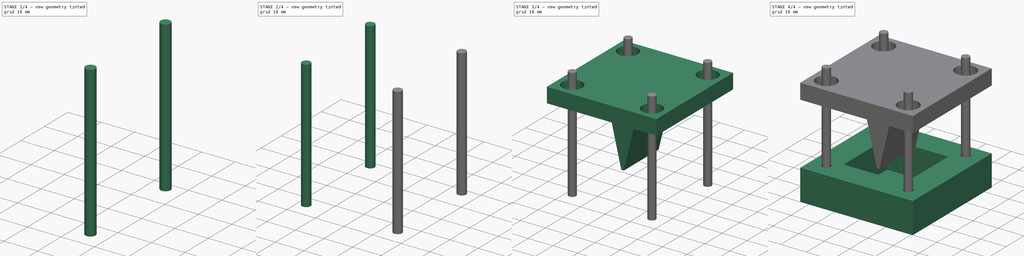
[diagram: build sequence overview — one tinted view per stage of 4, left to right]
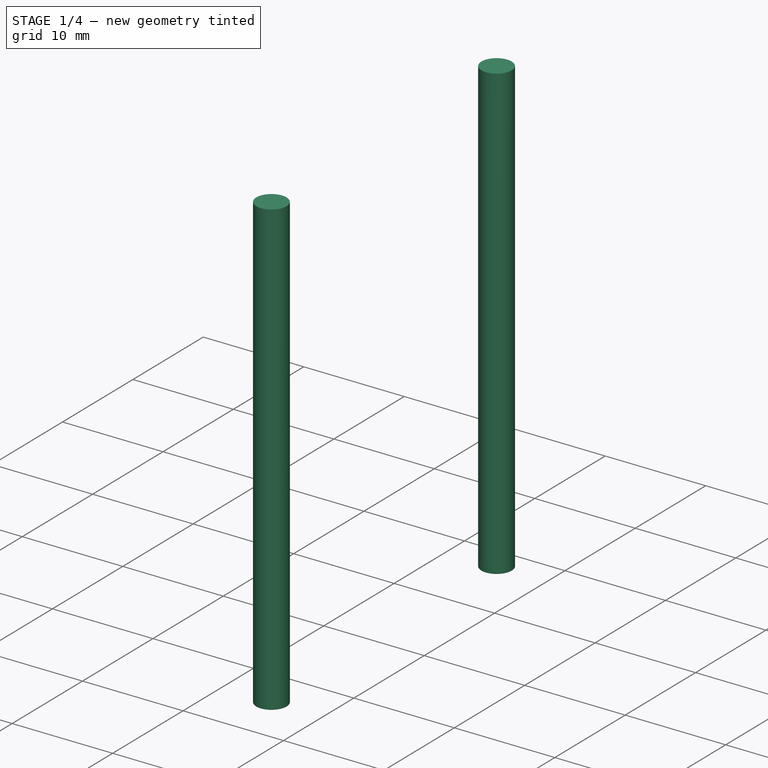
[diagram: stage 1 of 4 — iso view after this stage's code; geometry added in this stage tinted green]
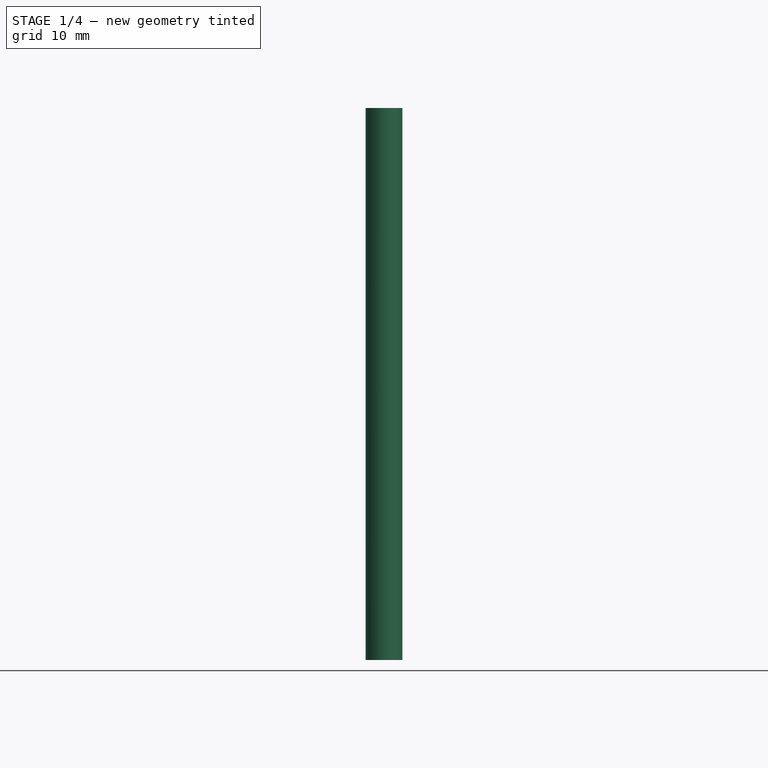
[diagram: stage 1 of 4 — front view after this stage's code; geometry added in this stage tinted green]
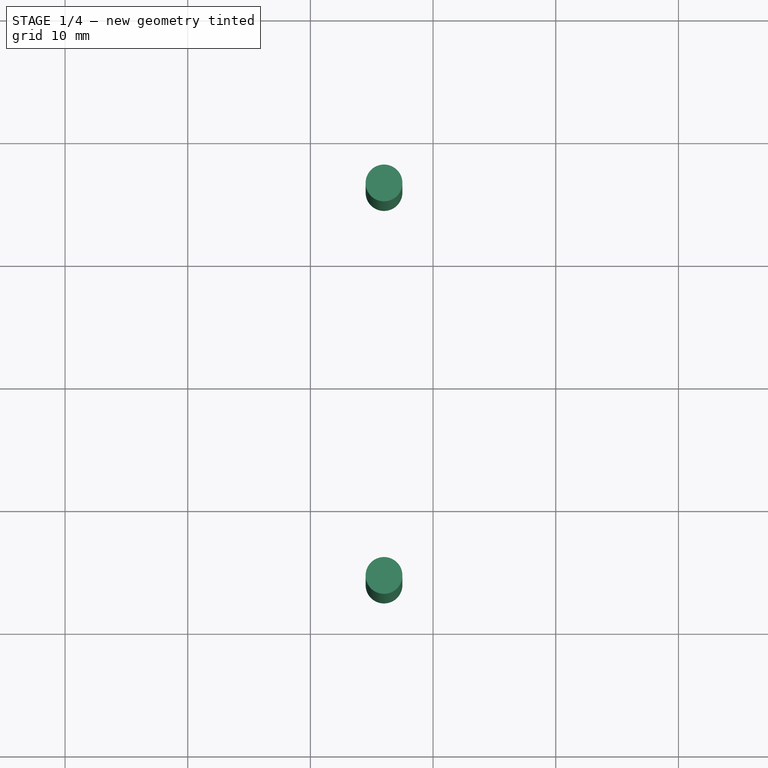
[diagram: stage 1 of 4 — top view after this stage's code; geometry added in this stage tinted green]
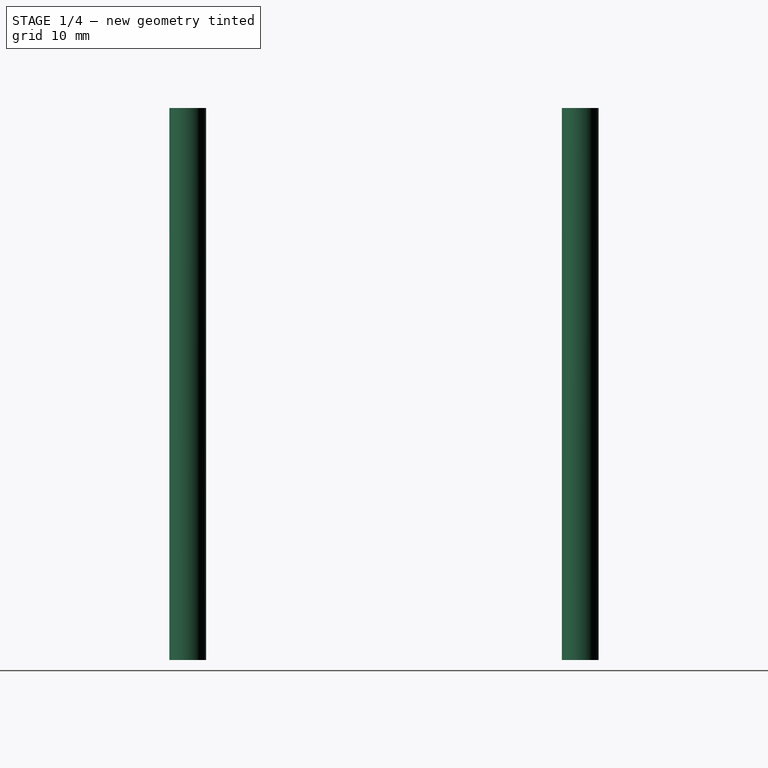
[diagram: stage 1 of 4 — right view after this stage's code; geometry added in this stage tinted green]
FCSTD DOCUMENT  (FreeCAD 0.17R13513 (Git))
Label: sen_b
License: All rights reserved
LicenseURL: http://en.wikipedia.org/wiki/All_rights_reserved
objects: Part::Cylinder×4, Sketcher::SketchObject×3, Part::Box×2, PartDesign::Pocket×2, PartDesign::Pad×1
note: 15 computed .brp shape members not serialized (recipe doc carries the construction recipe); baked Part::Feature solids carry a one-line shape summary decoded from their .brp

FEATURE [Part::Cylinder] Cylinder002
  Angle = 360
  AttacherType = Attacher::AttachEngine3D
  Height = 45
  Placement = pos=(36,36,0) rot=(0,0,1;0rad)
  Radius = 1.5
FEATURE [Part::Cylinder] Cylinder003
  Angle = 360
  AttacherType = Attacher::AttachEngine3D
  Height = 45
  Placement = pos=(36,4,0) rot=(0,0,1;0rad)
  Radius = 1.5
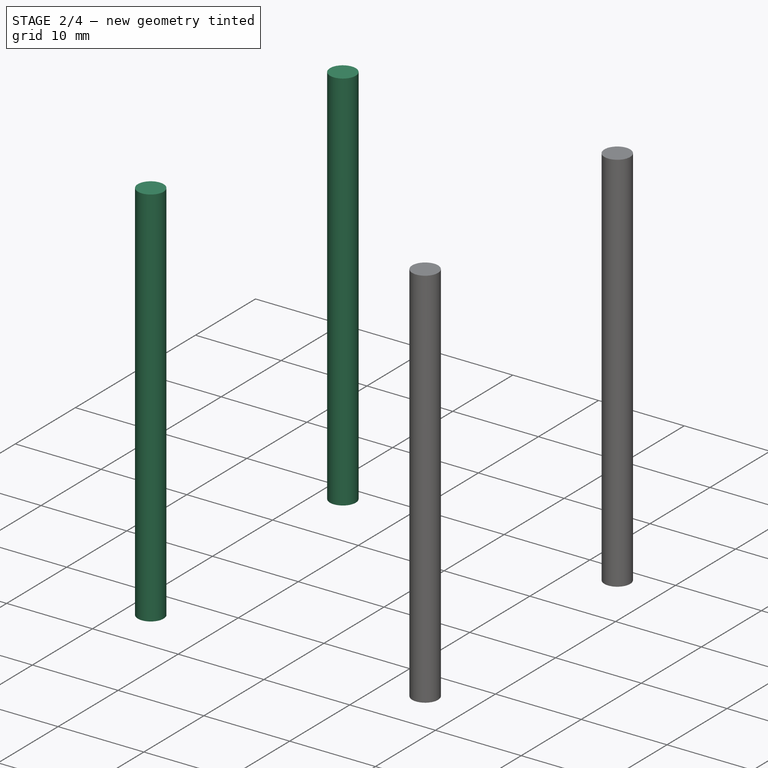
[diagram: stage 2 of 4 — iso view after this stage's code; geometry added in this stage tinted green]
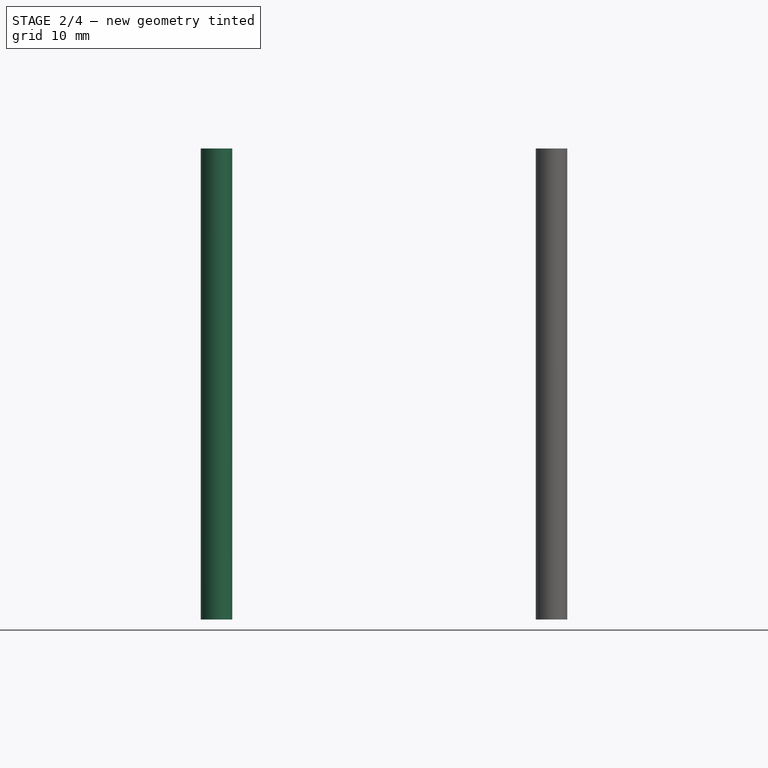
[diagram: stage 2 of 4 — front view after this stage's code; geometry added in this stage tinted green]
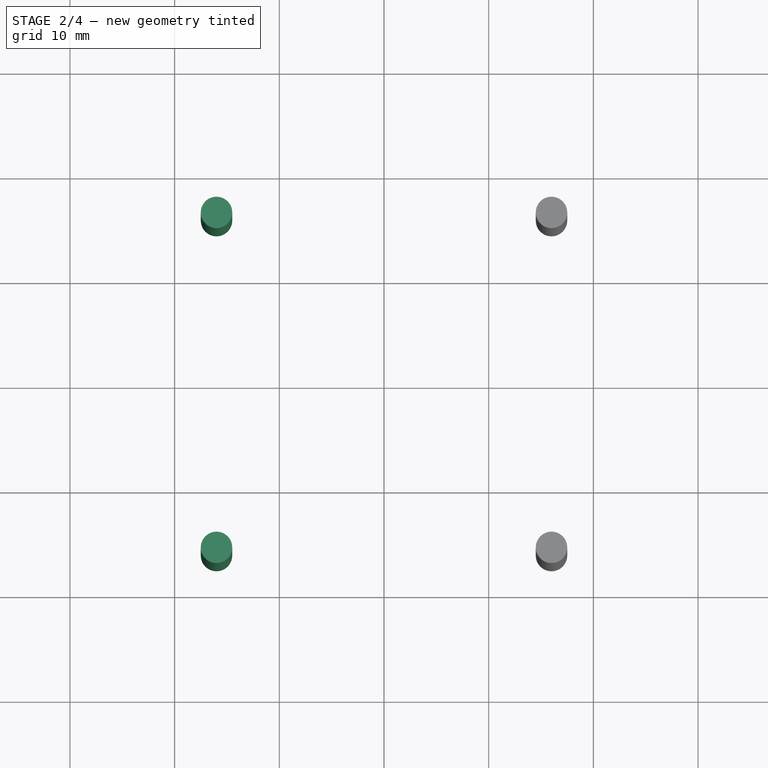
[diagram: stage 2 of 4 — top view after this stage's code; geometry added in this stage tinted green]
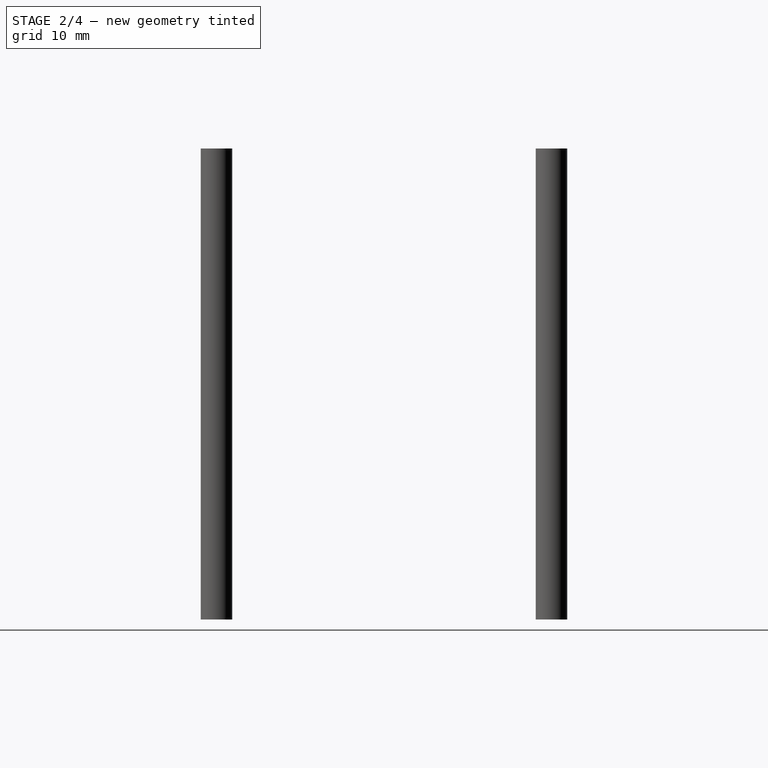
[diagram: stage 2 of 4 — right view after this stage's code; geometry added in this stage tinted green]
FEATURE [Part::Cylinder] Cylinder
  Angle = 360
  AttacherType = Attacher::AttachEngine3D
  Height = 45
  Placement = pos=(4,4,0) rot=(0,0,1;0rad)
  Radius = 1.5
FEATURE [Part::Cylinder] Cylinder001
  Angle = 360
  AttacherType = Attacher::AttachEngine3D
  Height = 45
  Placement = pos=(4,36,0) rot=(0,0,1;0rad)
  Radius = 1.5
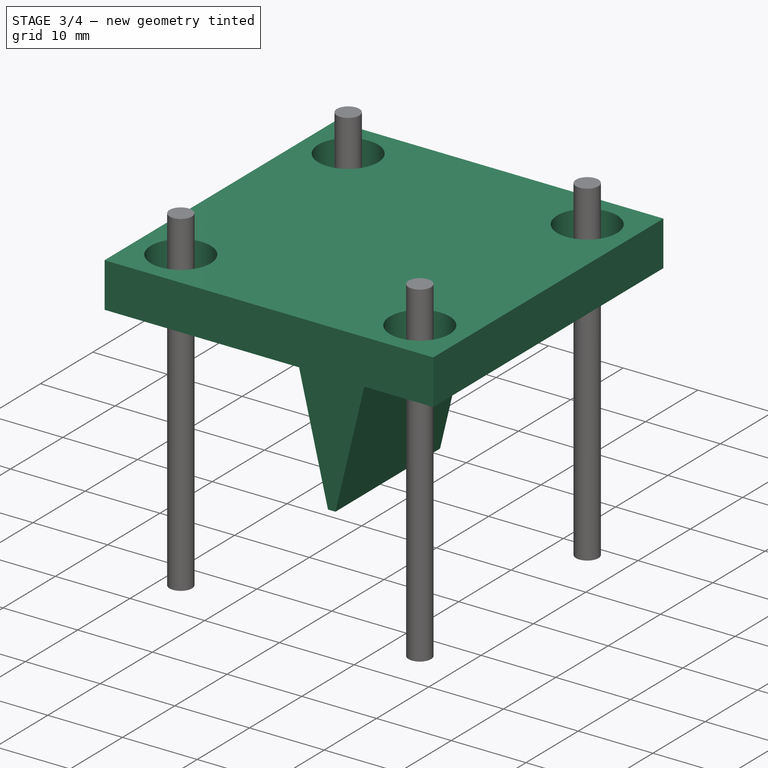
[diagram: stage 3 of 4 — iso view after this stage's code; geometry added in this stage tinted green]
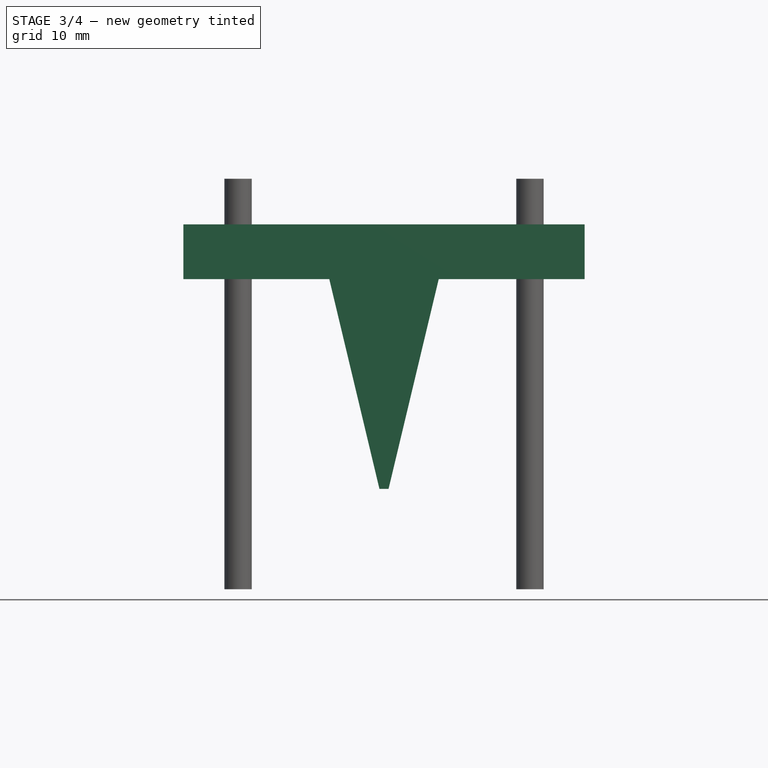
[diagram: stage 3 of 4 — front view after this stage's code; geometry added in this stage tinted green]
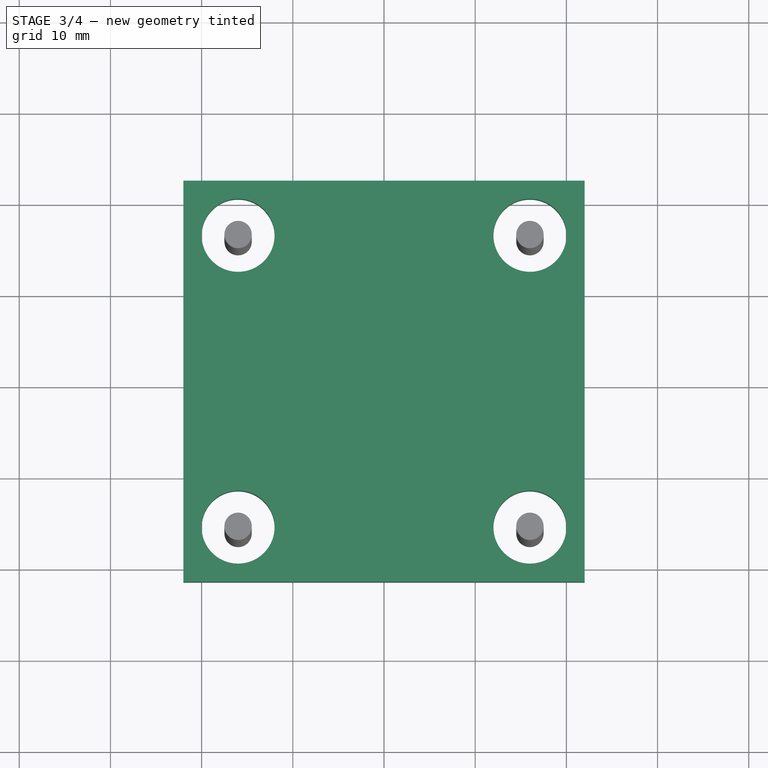
[diagram: stage 3 of 4 — top view after this stage's code; geometry added in this stage tinted green]
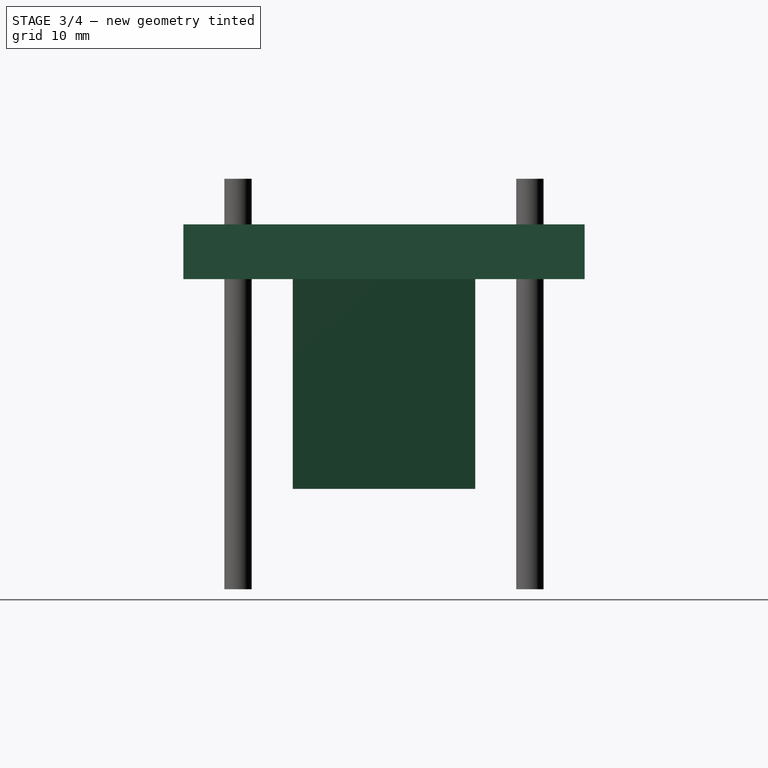
[diagram: stage 3 of 4 — right view after this stage's code; geometry added in this stage tinted green]
FEATURE [Sketcher::SketchObject] Sketch001
  MapMode = 5
  Placement = pos=(0,30,0) rot=(1,0,0;1.5708rad)
  sketch-geometry (8):
    g0: LineSegment StartX=0 StartY=40 StartZ=0 EndX=40 EndY=40 EndZ=0
    g1: LineSegment StartX=40 StartY=40 StartZ=0 EndX=40 EndY=34 EndZ=0
    g2: LineSegment StartX=40 StartY=34 StartZ=0 EndX=26 EndY=34 EndZ=0
    g3: LineSegment StartX=26 StartY=34 StartZ=0 EndX=20.5 EndY=11 EndZ=0
    g4: LineSegment StartX=20.5 StartY=11 StartZ=0 EndX=19.5 EndY=11 EndZ=0
    g5: LineSegment StartX=19.5 StartY=11 StartZ=0 EndX=14 EndY=34 EndZ=0
    g6: LineSegment StartX=14 StartY=34 StartZ=0 EndX=0 EndY=34 EndZ=0
    g7: LineSegment StartX=0 StartY=34 StartZ=0 EndX=0 EndY=40 EndZ=0
  constraints (24):
    c: Coincident(g0,g1)
    c: Coincident(g1,g2)
    c: Coincident(g2,g3)
    c: Coincident(g3,g4)
    c: Coincident(g4,g5)
    c: Coincident(g5,g6)
    c: Coincident(g6,g7)
    c: Coincident(g7,g0)
    c: Horizontal(g6)
    c: DistanceY(g5,g2) = 0
    c: Horizontal(g2)
    c: Horizontal(g0)
    c: Vertical(g1)
    c: Vertical(g7)
    c: Horizontal(g4)
    c: DistanceX(g0,g0) = 40
    c: DistanceX(g6,g5) = 14
    c: DistanceX(g6,g-1) = 0
    c: DistanceX(g2,g1) = 14
    c: DistanceX(g4,g3) = 1
    c: DistanceX(g5,g4) = 5.5
    c: DistanceY(g-1,g3) = 11
    c: DistanceY(g1,g0) = 6
    c: DistanceY(g-1,g0) = 40
FEATURE [PartDesign::Pad] Pad
  Length = 20
  Length2 = 100
  Placement = pos=(0,30,0) rot=(1,0,0;1.5708rad)
  Profile = -> Sketch001
  Type = 0
FEATURE [Part::Box] Box001  label="Cube001"
  AttacherType = Attacher::AttachEngine3D
  Height = 6
  Length = 44
  Placement = pos=(-2,-2,34) rot=(0,0,1;0rad)
  Width = 44
FEATURE [Sketcher::SketchObject] Sketch002
  MapMode = 5
  Placement = pos=(-2,-2,40) rot=(0,0,1;0rad)
  Support = -> [Box001]
  sketch-geometry (4):
    g0: Circle CenterX=6 CenterY=38 CenterZ=0 NormalX=0 NormalY=0 NormalZ=1 AngleXU=0 Radius=4
    g1: Circle CenterX=38 CenterY=38 CenterZ=0 NormalX=0 NormalY=0 NormalZ=1 AngleXU=0 Radius=4
    g2: Circle CenterX=6 CenterY=6 CenterZ=0 NormalX=0 NormalY=0 NormalZ=1 AngleXU=0 Radius=4
    g3: Circle CenterX=38 CenterY=6 CenterZ=0 NormalX=0 NormalY=0 NormalZ=1 AngleXU=0 Radius=4
  constraints (12):
    c: Radius(g2) = 4
    c: DistanceY(g-1,g2) = 6
    c: DistanceX(g-1,g2) = 6
    c: DistanceX(g2,g3) = 32
    c: DistanceY(g3,g1) = 32
    c: DistanceY(g2,g3) = 0
    c: DistanceX(g3,g1) = 0
    c: DistanceX(g0,g1) = 32
    c: DistanceY(g1,g0) = 0
    c: Radius(g3) = 4
    c: Radius(g1) = 4
    c: Radius(g0) = 4
FEATURE [PartDesign::Pocket] Pocket001
  Length = 7
  Length2 = 100
  Placement = pos=(-2,-2,34) rot=(0,0,1;0rad)
  Profile = -> Sketch002
  Type = 0
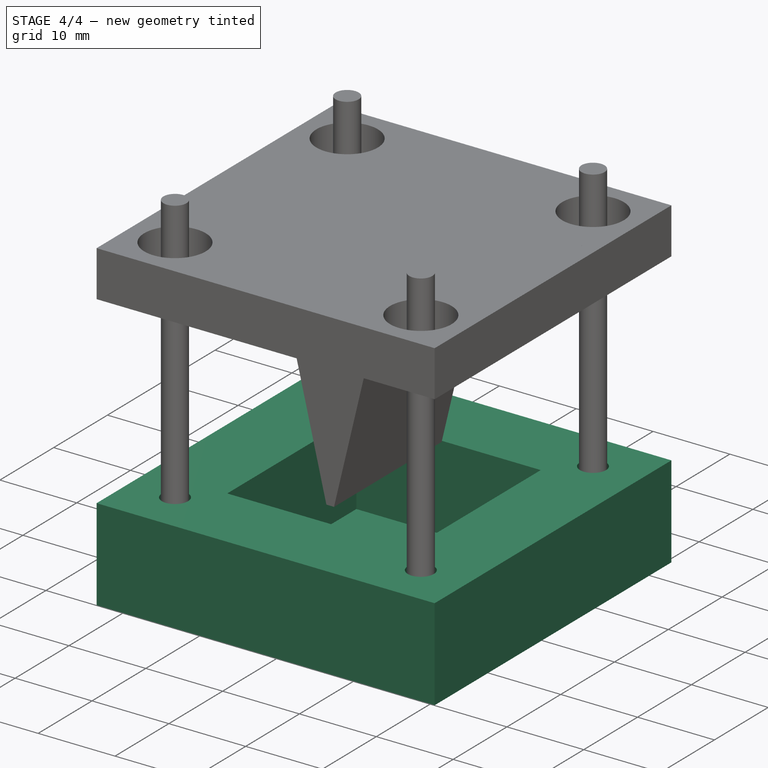
[diagram: stage 4 of 4 — iso view after this stage's code; geometry added in this stage tinted green]
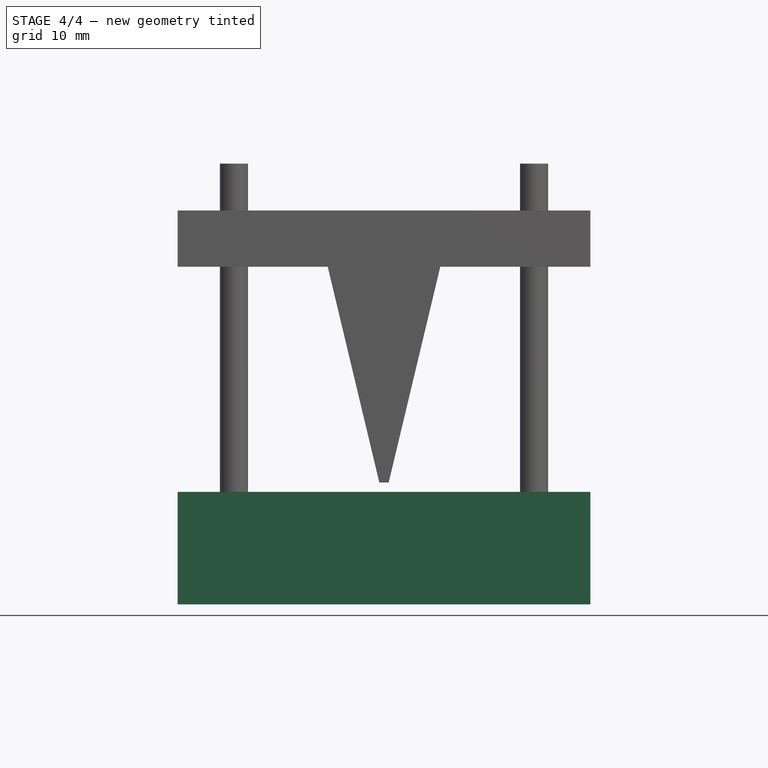
[diagram: stage 4 of 4 — front view after this stage's code; geometry added in this stage tinted green]
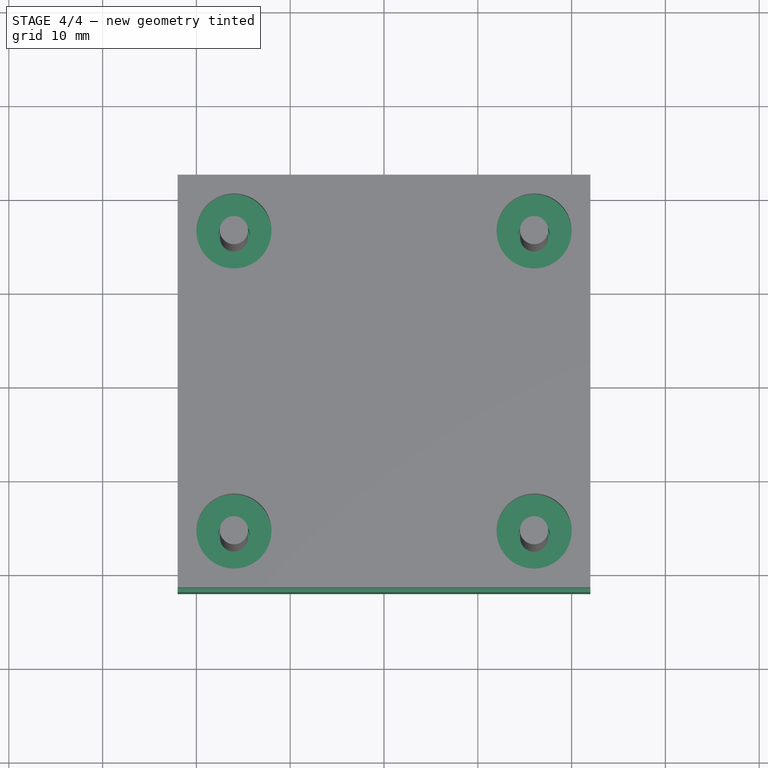
[diagram: stage 4 of 4 — top view after this stage's code; geometry added in this stage tinted green]
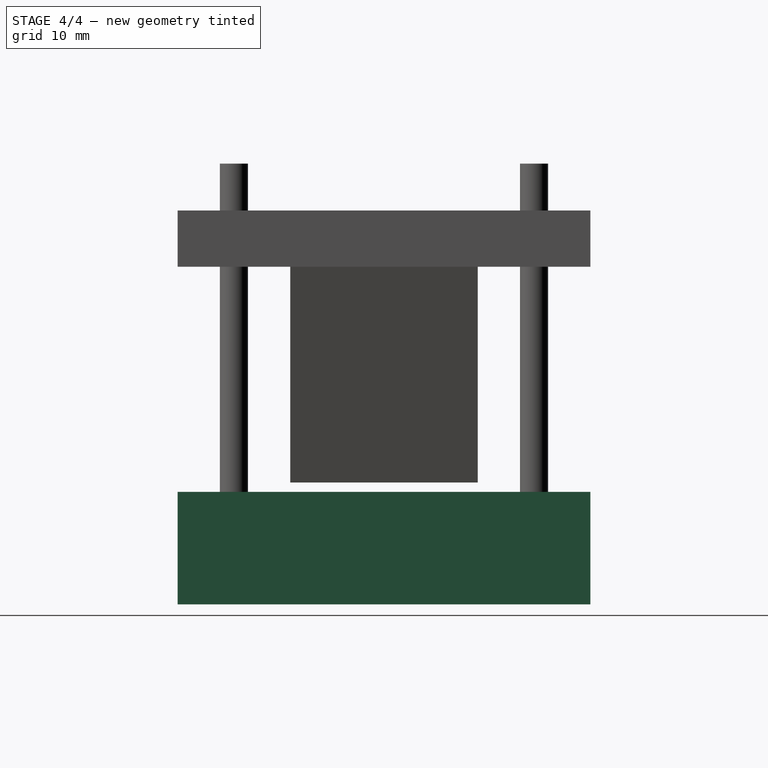
[diagram: stage 4 of 4 — right view after this stage's code; geometry added in this stage tinted green]
FEATURE [Part::Box] Box  label="Cube"
  AttacherType = Attacher::AttachEngine3D
  Height = 12
  Length = 44
  Placement = pos=(-2,-2,-2) rot=(0,0,1;0rad)
  Width = 44
FEATURE [Sketcher::SketchObject] Sketch
  MapMode = 5
  Placement = pos=(-2,-2,10) rot=(0,0,1;0rad)
  Support = -> [Box]
  sketch-geometry (9):
    g0: GeomPoint [constr] X=22 Y=22 Z=0
    g1: Circle CenterX=6 CenterY=38 CenterZ=0 NormalX=0 NormalY=0 NormalZ=1 AngleXU=0 Radius=1.7
    g2: Circle CenterX=38 CenterY=38 CenterZ=0 NormalX=0 NormalY=0 NormalZ=1 AngleXU=0 Radius=1.7
    g3: Circle CenterX=38 CenterY=6 CenterZ=0 NormalX=0 NormalY=0 NormalZ=1 AngleXU=0 Radius=1.7
    g4: Circle CenterX=6 CenterY=6 CenterZ=0 NormalX=0 NormalY=0 NormalZ=1 AngleXU=0 Radius=1.7
    g5: LineSegment StartX=10 StartY=34 StartZ=0 EndX=34 EndY=34 EndZ=0
    g6: LineSegment StartX=34 StartY=34 StartZ=0 EndX=34 EndY=10 EndZ=0
    g7: LineSegment StartX=34 StartY=10 StartZ=0 EndX=10 EndY=10 EndZ=0
    g8: LineSegment StartX=10 StartY=10 StartZ=0 EndX=10 EndY=34 EndZ=0
  constraints (23):
    c: DistanceY(g-1,g0) = 22
    c: DistanceX(g0) = 22
    c: Coincident(g5,g6)
    c: Coincident(g6,g7)
    c: Coincident(g7,g8)
    c: Coincident(g8,g5)
    c: Horizontal(g5)
    c: Horizontal(g7)
    c: Vertical(g6)
    c: Vertical(g8)
    c: Symmetric(g1,g3,g0)
    c: Symmetric(g4,g2,g0)
    c: DistanceX(g4,g3) = 32
    c: DistanceY(g3,g2) = 32
    c: DistanceY(g2,g1) = 0
    c: DistanceX(g4,g1) = 0
    c: DistanceY(g0,g5) = 12
    c: DistanceX(g5,g0) = 12
    c: Symmetric(g7,g5,g0)
    c: Radius(g4) = 1.7
    c: Radius(g3) = 1.7
    c: Radius(g1) = 1.7
    c: Radius(g2) = 1.7
FEATURE [PartDesign::Pocket] Pocket
  Length = 11
  Length2 = 100
  Placement = pos=(-2,-2,-2) rot=(0,0,1;0rad)
  Profile = -> Sketch
  Type = 0
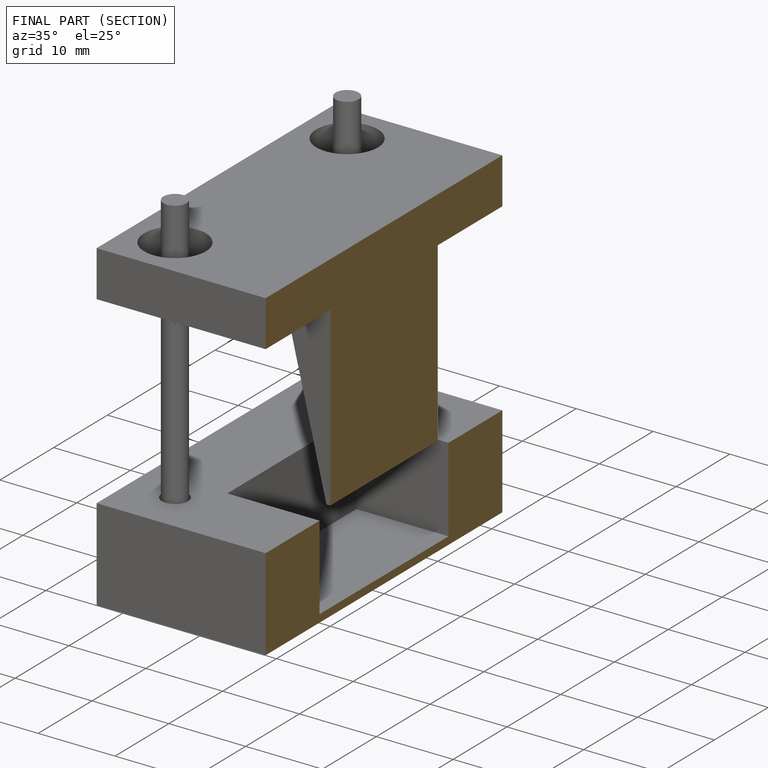
[diagram: finished part — half-section view (interior)]
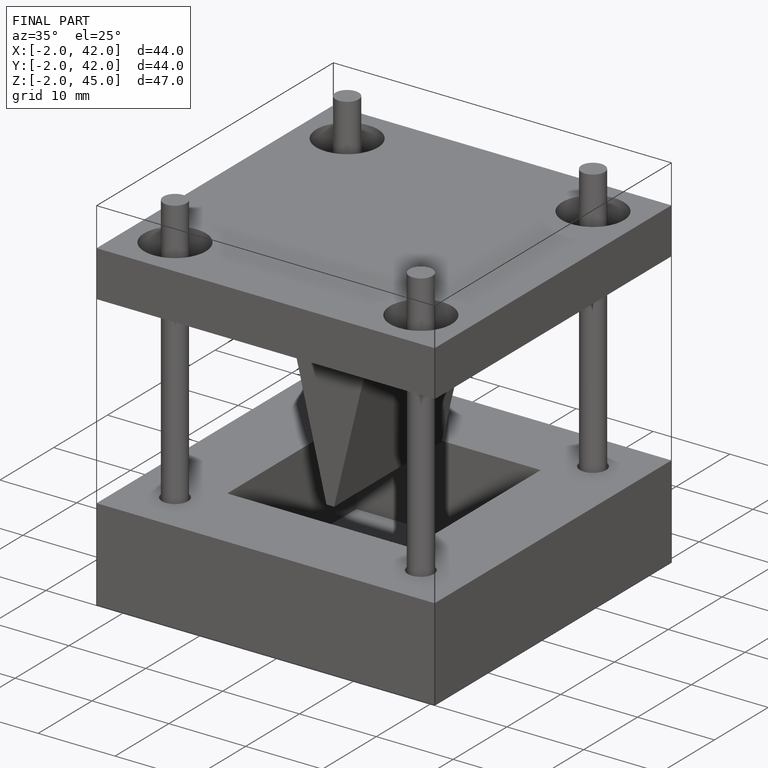
[diagram: finished part — iso view with bounding-box wireframe]
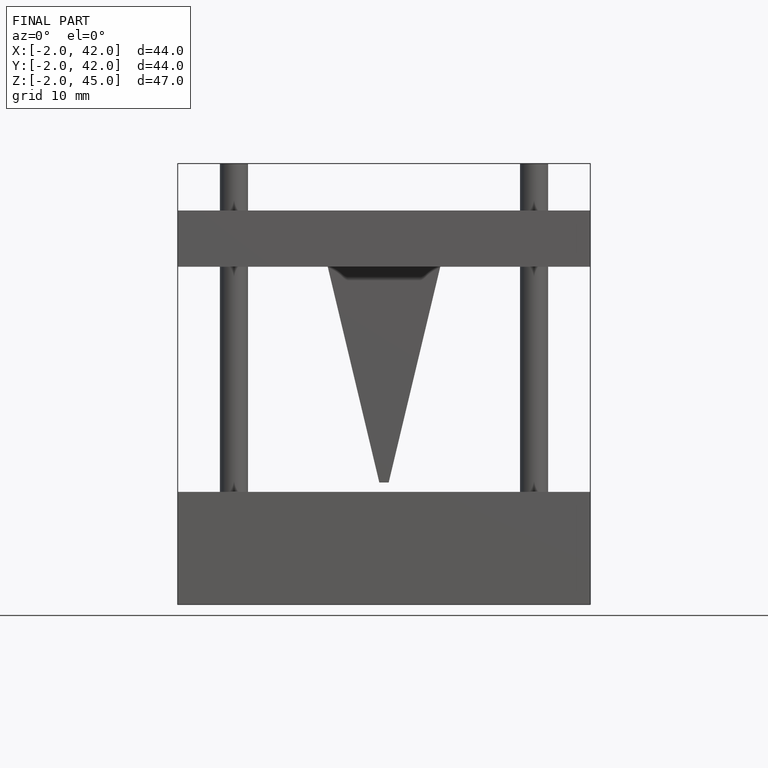
[diagram: finished part — front view with bounding-box wireframe]
